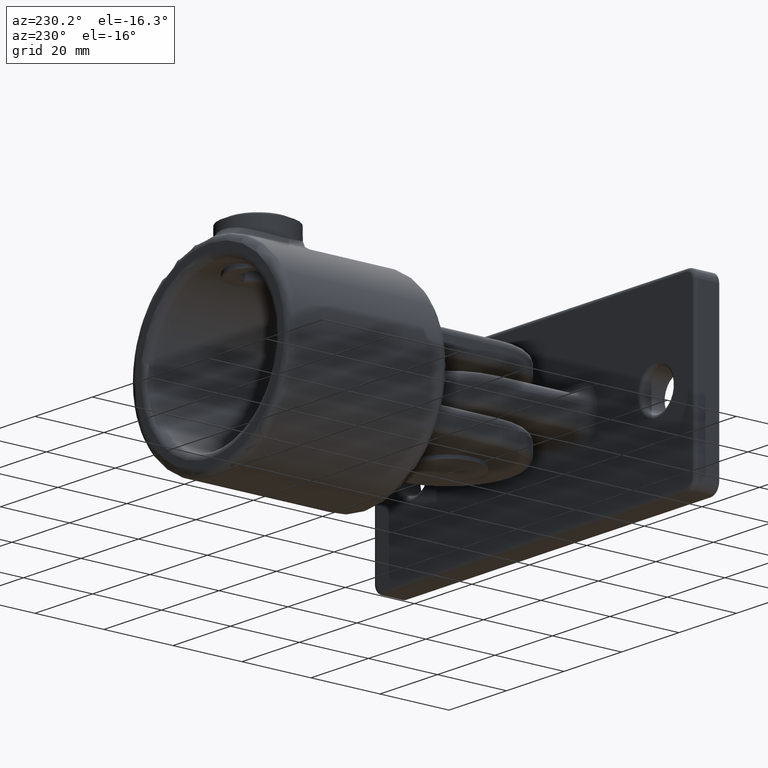
[diagram: clean part render]
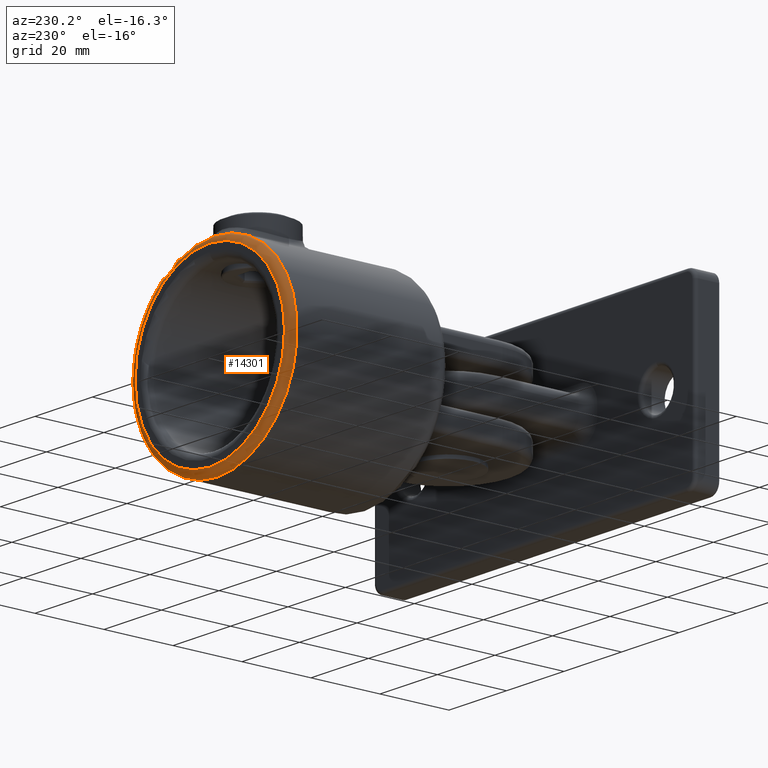
[diagram: same view with one face highlighted and labeled with its STEP entity id]
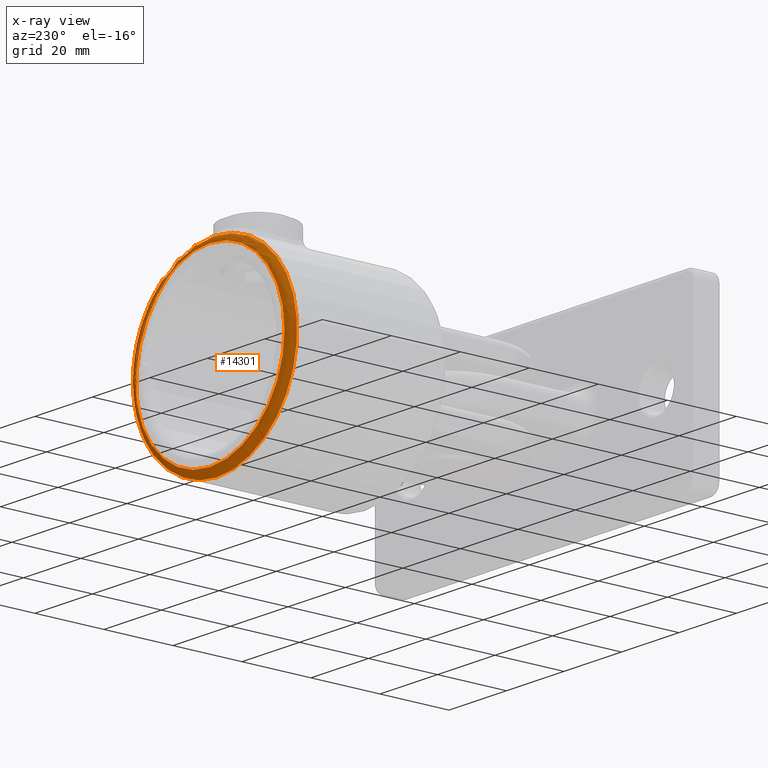
[diagram: x-ray of the same camera — body ghosted, the highlighted face saturated]
A machine part, auxiliary view. The second image highlights one B-rep face of the part: STEP entity #14301.
The next image is the same camera in x-ray: the body ghosted, the highlighted face saturated — about 0% of this face is hidden behind the body in this view.
In plain terms, the highlighted toroidal blend (fillet) surface has major radius 26 mm and minor (blend) radius 2 mm.
Its self-contained STEP definition (entity closure, byte-faithful):
#165 = FACE_OUTER_BOUND ( 'NONE', #15189, .T. ) ;
#300 = DIRECTION ( 'NONE',  ( 0.000000000000000000, 1.000000000000000000, 0.000000000000000000 ) ) ;
#466 = CARTESIAN_POINT ( 'NONE',  ( 0.000000000000000000, 2.000000000000001776, 0.000000000000000000 ) ) ;
#1232 = CARTESIAN_POINT ( 'NONE',  ( 0.000000000000000000, 0.000000000000000000, 26.00000000000000355 ) ) ;
#1582 = DIRECTION ( 'NONE',  ( 0.000000000000000000, 1.000000000000000000, 0.000000000000000000 ) ) ;
#1775 = DIRECTION ( 'NONE',  ( 0.000000000000000000, 0.000000000000000000, 1.000000000000000000 ) ) ;
#1976 = EDGE_LOOP ( 'NONE', ( #13429 ) ) ;
#2076 = ORIENTED_EDGE ( 'NONE', *, *, #15763, .F. ) ;
#3572 = CARTESIAN_POINT ( 'NONE',  ( 0.000000000000000000, 2.000000000000001776, 28.00000000000000000 ) ) ;
#4061 = DIRECTION ( 'NONE',  ( 0.000000000000000000, 0.000000000000000000, 1.000000000000000000 ) ) ;
#4460 = FACE_OUTER_BOUND ( 'NONE', #1976, .T. ) ;
#9039 = DIRECTION ( 'NONE',  ( -0.000000000000000000, -1.000000000000000000, -0.000000000000000000 ) ) ;
#9291 = VERTEX_POINT ( 'NONE', #3572 ) ;
#9664 = EDGE_CURVE ( 'NONE', #10420, #10420, #14978, .T. ) ;
#10420 = VERTEX_POINT ( 'NONE', #1232 ) ;
#11724 = CARTESIAN_POINT ( 'NONE',  ( 0.000000000000000000, 0.000000000000000000, 0.000000000000000000 ) ) ;
#12151 = AXIS2_PLACEMENT_3D ( 'NONE', #11724, #9039, #4061 ) ;
#12246 = CIRCLE ( 'NONE', #14308, 28.00000000000000000 ) ;
#13429 = ORIENTED_EDGE ( 'NONE', *, *, #9664, .F. ) ;
#14294 = DIRECTION ( 'NONE',  ( 0.000000000000000000, 0.000000000000000000, 1.000000000000000000 ) ) ;
#14301 = ADVANCED_FACE ( 'NONE', ( #4460, #165 ), #16734, .T. ) ;
#14308 = AXIS2_PLACEMENT_3D ( 'NONE', #15691, #1582, #14294 ) ;
#14978 = CIRCLE ( 'NONE', #12151, 26.00000000000000355 ) ;
#15189 = EDGE_LOOP ( 'NONE', ( #2076 ) ) ;
#15585 = AXIS2_PLACEMENT_3D ( 'NONE', #466, #300, #1775 ) ;
#15691 = CARTESIAN_POINT ( 'NONE',  ( 0.000000000000000000, 2.000000000000001776, 0.000000000000000000 ) ) ;
#15763 = EDGE_CURVE ( 'NONE', #9291, #9291, #12246, .T. ) ;
#16734 = TOROIDAL_SURFACE ( 'NONE', #15585, 26.00000000000000355, 2.000000000000000000 ) ;